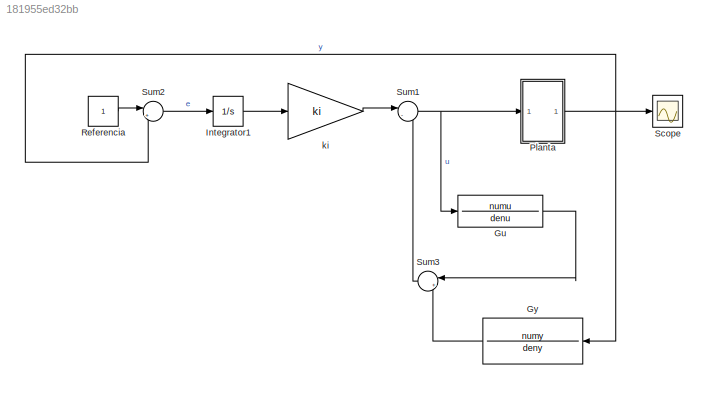
MODEL slx_181955ed32bb
KIND model
CONFIG AbsTol = auto
CONFIG FixedStep = auto
CONFIG MaxStep = auto
CONFIG MinStep = auto
CONFIG RelTol = 1e-3
CONFIG SampleTimeConstraint = Unconstrained
CONFIG Solver = VariableStepAuto
CONFIG SolverMode = Auto
CONFIG SolverName = VariableStepAuto
CONFIG StartTime = 0.0
CONFIG StopTime = 10.0
BLOCK [TransferFcn] Gu
  Denominator = denu
  Numerator = numu
BLOCK [TransferFcn] Gy
  Denominator = deny
  Numerator = numy
BLOCK [Integrator] Integrator1
  Ports = [1, 1]
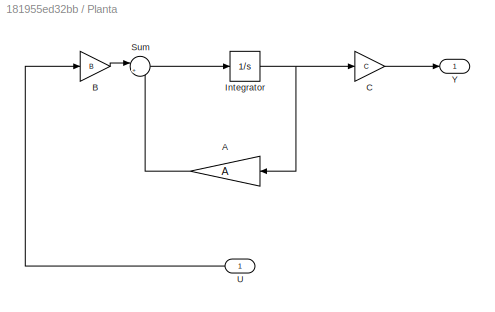
BLOCK [SubSystem] Planta
  Ports = [1, 1]
  RequestExecContextInheritance = off
  Variant = off
BLOCK [Gain] Planta/A
  Gain = A
  Multiplication = Matrix(K*u) (u vector)
  OutDataTypeStr = Inherit: Inherit via internal rule
  ParamDataTypeStr = Inherit: Inherit via internal rule
  SaturateOnIntegerOverflow = off
BLOCK [Gain] Planta/B
  Gain = B
  Multiplication = Matrix(K*u) (u vector)
  OutDataTypeStr = Inherit: Inherit via internal rule
  ParamDataTypeStr = Inherit: Inherit via internal rule
  SaturateOnIntegerOverflow = off
BLOCK [Gain] Planta/C
  Gain = C
  Multiplication = Matrix(K*u) (u vector)
  OutDataTypeStr = Inherit: Inherit via internal rule
  ParamDataTypeStr = Inherit: Inherit via internal rule
  SaturateOnIntegerOverflow = off
BLOCK [Integrator] Planta/Integrator
  Ports = [1, 1]
BLOCK [Sum] Planta/Sum
  IconShape = round
  InputSameDT = off
  Inputs = |++
  OutDataTypeStr = Inherit: Inherit via internal rule
  Ports = [2, 1]
  SaturateOnIntegerOverflow = off
BLOCK [Inport] Planta/U
  IconDisplay = Port number
BLOCK [Outport] Planta/Y
  IconDisplay = Port number
BLOCK [Constant] Referencia
BLOCK [Scope] Scope
  Ports = [1]
  ScopeSpecificationString = Simulink.scopes.TimeScopeBlockCfg('CurrentConfiguration', extmgr.ConfigurationSet(extmgr.Configuration('Core','General UI',true),extmgr.Configuration('Core','Source UI',true),extmgr.Configuration('Sources','WiredSimulink',true),extmgr.Configuration('Visuals','Time Domain',true,'SerializedDisplays',{struct('MinYLimReal','-6.30122','MaxYLimReal','3.4835','YLabelReal','','MinYLimMag','0.00000','MaxYL...<+1372ch>
BLOCK [Sum] Sum1
  IconShape = round
  InputSameDT = off
  Inputs = |--
  OutDataTypeStr = Inherit: Inherit via internal rule
  Ports = [2, 1]
  SaturateOnIntegerOverflow = off
BLOCK [Sum] Sum2
  IconShape = round
  InputSameDT = off
  Inputs = |+-
  OutDataTypeStr = Inherit: Inherit via internal rule
  Ports = [2, 1]
  SaturateOnIntegerOverflow = off
BLOCK [Sum] Sum3
  IconShape = round
  InputSameDT = off
  Inputs = |++
  OutDataTypeStr = Inherit: Inherit via internal rule
  Ports = [2, 1]
  SaturateOnIntegerOverflow = off
BLOCK [Gain] ki
  Gain = ki
  Multiplication = Matrix(K*u) (u vector)
  OutDataTypeStr = Inherit: Inherit via internal rule
  ParamDataTypeStr = Inherit: Inherit via internal rule
  SaturateOnIntegerOverflow = off
LINE Gu:1 -> Sum3:1
LINE Gy:1 -> Sum3:2
LINE Integrator1:1 -> ki:1
LINE Planta/A:1 -> Planta/Sum:2
LINE Planta/B:1 -> Planta/Sum:1
LINE Planta/C:1 -> Planta/Y:1
NET Planta/Integrator:1 -> Planta/A:1, Planta/C:1
LINE Planta/Sum:1 -> Planta/Integrator:1
LINE Planta/U:1 -> Planta/B:1
NET Planta:1 -> Gy:1, Scope:1, Sum2:2
LINE Referencia:1 -> Sum2:1
NET Sum1:1 -> Gu:1, Planta:1
LINE Sum2:1 -> Integrator1:1
LINE Sum3:1 -> Sum1:2
LINE ki:1 -> Sum1:1
note: NET lines group one-source signal fan-out (src -> all destinations, sorted); 1:1 wires keep LINE
